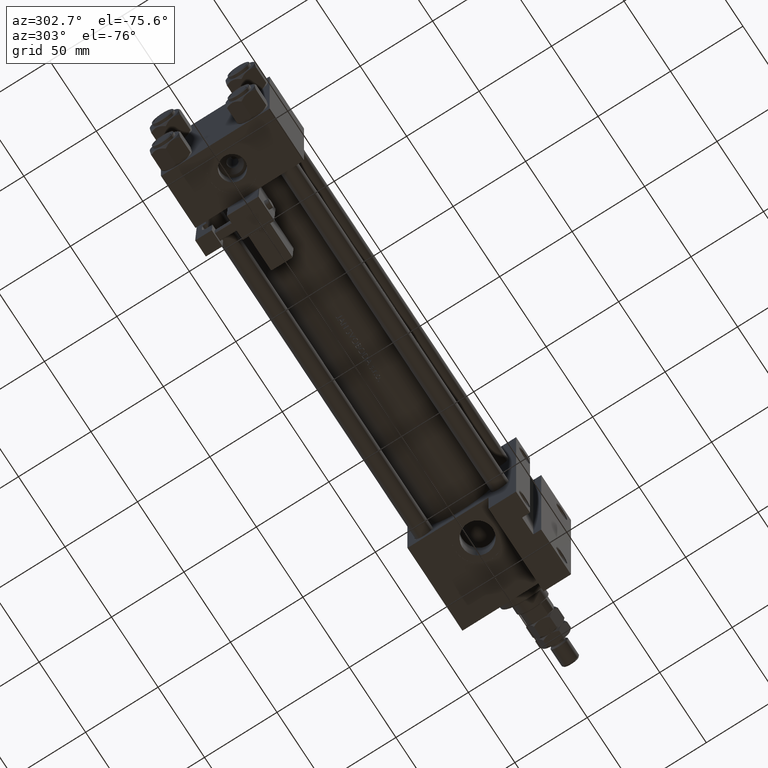
[diagram: clean part render]
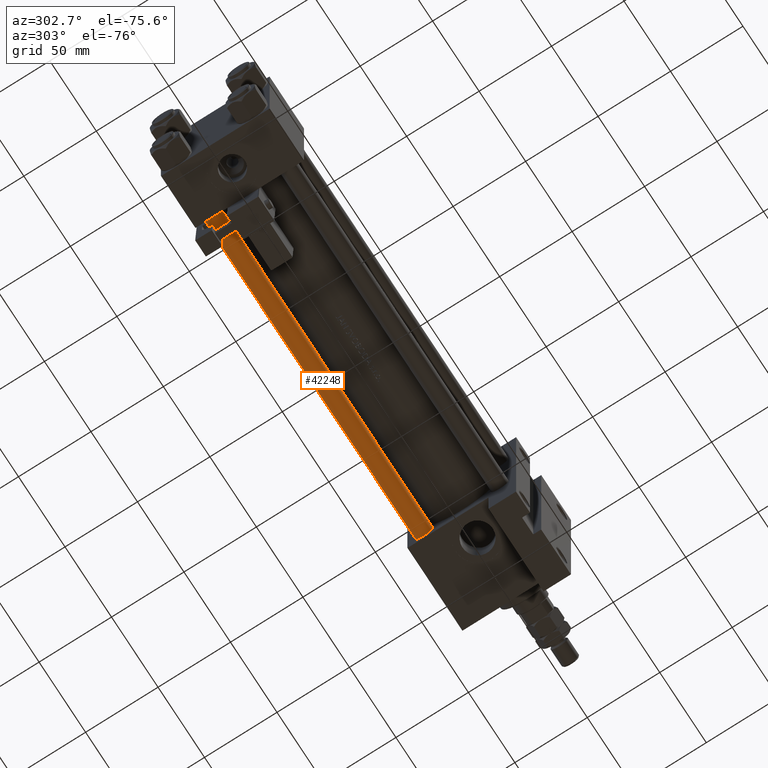
[diagram: same view with one face highlighted and labeled with its STEP entity id]
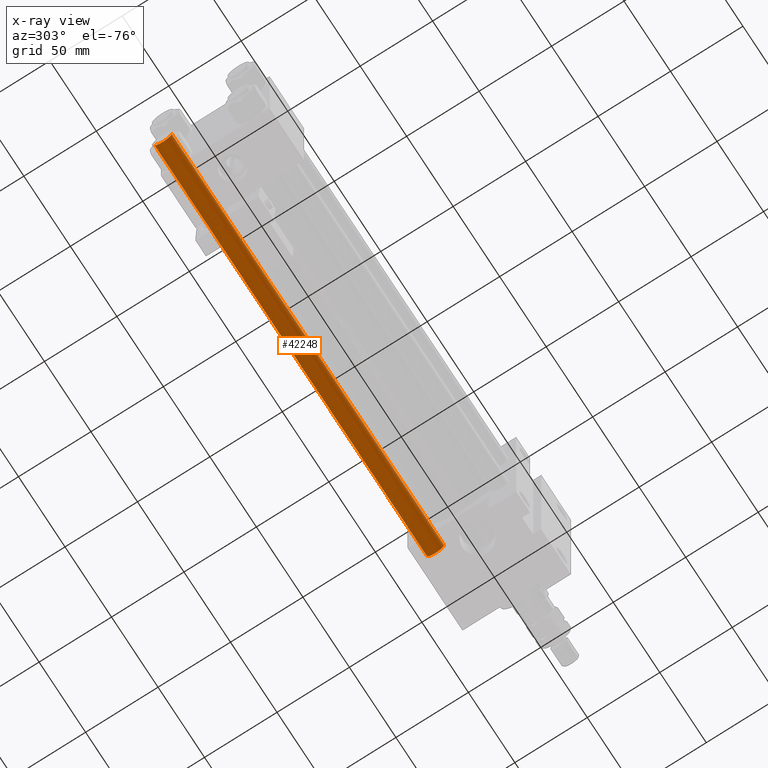
[diagram: x-ray of the same camera — body ghosted, the highlighted face saturated]
A machine part, auxiliary view. The second image highlights one B-rep face of the part: STEP entity #42248.
The next image is the same camera in x-ray: the body ghosted, the highlighted face saturated — about 0% of this face is hidden behind the body in this view.
In plain terms, the highlighted cylindrical surface (edge-blend (fillet) strip) has radius 6 mm, axis along (-1, -0, 0).
Its self-contained STEP definition (entity closure, byte-faithful):
#570 = LINE ( 'NONE', #12264, #26488 ) ;
#2121 = DIRECTION ( 'NONE',  ( 0.000000000000000000, 0.000000000000000000, -1.000000000000000000 ) ) ;
#2716 = CARTESIAN_POINT ( 'NONE',  ( -6.000000000000000888, 0.000000000000000000, 293.5000000000000568 ) ) ;
#5366 = VECTOR ( 'NONE', #29384, 1000.000000000000000 ) ;
#5447 = CARTESIAN_POINT ( 'NONE',  ( 0.000000000000000000, 0.000000000000000000, 294.0000000000000000 ) ) ;
#6209 = EDGE_CURVE ( 'NONE', #23970, #47985, #9135, .T. ) ;
#7783 = CIRCLE ( 'NONE', #42586, 6.000000000000000888 ) ;
#9135 = LINE ( 'NONE', #9380, #5366 ) ;
#9380 = CARTESIAN_POINT ( 'NONE',  ( 6.000000000000000888, 7.347880794884120722E-16, 294.0000000000000000 ) ) ;
#9969 = ORIENTED_EDGE ( 'NONE', *, *, #14239, .T. ) ;
#11755 = EDGE_LOOP ( 'NONE', ( #49881, #9969, #31711, #34161 ) ) ;
#12264 = CARTESIAN_POINT ( 'NONE',  ( -6.000000000000000888, 0.000000000000000000, 294.0000000000000000 ) ) ;
#13914 = CARTESIAN_POINT ( 'NONE',  ( 6.000000000000000888, 7.347880794884120722E-16, 293.5000000000000568 ) ) ;
#14239 = EDGE_CURVE ( 'NONE', #23970, #22016, #39542, .T. ) ;
#18149 = VERTEX_POINT ( 'NONE', #35867 ) ;
#22016 = VERTEX_POINT ( 'NONE', #2716 ) ;
#23970 = VERTEX_POINT ( 'NONE', #13914 ) ;
#23990 = EDGE_CURVE ( 'NONE', #18149, #47985, #7783, .T. ) ;
#25191 = CYLINDRICAL_SURFACE ( 'NONE', #42836, 6.000000000000000888 ) ;
#25458 = DIRECTION ( 'NONE',  ( -0.000000000000000000, -0.000000000000000000, -1.000000000000000000 ) ) ;
#25511 = CARTESIAN_POINT ( 'NONE',  ( 0.000000000000000000, 0.000000000000000000, 293.5000000000000568 ) ) ;
#26488 = VECTOR ( 'NONE', #35371, 1000.000000000000000 ) ;
#26632 = DIRECTION ( 'NONE',  ( -0.000000000000000000, -0.000000000000000000, 1.000000000000000000 ) ) ;
#29384 = DIRECTION ( 'NONE',  ( -0.000000000000000000, -0.000000000000000000, -1.000000000000000000 ) ) ;
#30519 = DIRECTION ( 'NONE',  ( 1.000000000000000000, 0.000000000000000000, 0.000000000000000000 ) ) ;
#30778 = CARTESIAN_POINT ( 'NONE',  ( 0.000000000000000000, 0.000000000000000000, 0.5000000000000559552 ) ) ;
#31711 = ORIENTED_EDGE ( 'NONE', *, *, #50663, .T. ) ;
#32611 = CARTESIAN_POINT ( 'NONE',  ( 6.000000000000000888, 7.347880794884120722E-16, 0.5000000000000559552 ) ) ;
#33750 = DIRECTION ( 'NONE',  ( -1.000000000000000000, 0.000000000000000000, 0.000000000000000000 ) ) ;
#34161 = ORIENTED_EDGE ( 'NONE', *, *, #23990, .T. ) ;
#35371 = DIRECTION ( 'NONE',  ( -0.000000000000000000, -0.000000000000000000, -1.000000000000000000 ) ) ;
#35867 = CARTESIAN_POINT ( 'NONE',  ( -6.000000000000000888, 0.000000000000000000, 0.5000000000000559552 ) ) ;
#37059 = AXIS2_PLACEMENT_3D ( 'NONE', #25511, #2121, #41334 ) ;
#39542 = CIRCLE ( 'NONE', #37059, 6.000000000000000888 ) ;
#41334 = DIRECTION ( 'NONE',  ( 1.000000000000000000, 0.000000000000000000, 0.000000000000000000 ) ) ;
#42248 = ADVANCED_FACE ( 'NONE', ( #49340 ), #25191, .T. ) ;
#42586 = AXIS2_PLACEMENT_3D ( 'NONE', #30778, #26632, #30519 ) ;
#42836 = AXIS2_PLACEMENT_3D ( 'NONE', #5447, #25458, #33750 ) ;
#47985 = VERTEX_POINT ( 'NONE', #32611 ) ;
#49340 = FACE_OUTER_BOUND ( 'NONE', #11755, .T. ) ;
#49881 = ORIENTED_EDGE ( 'NONE', *, *, #6209, .F. ) ;
#50663 = EDGE_CURVE ( 'NONE', #22016, #18149, #570, .T. ) ;